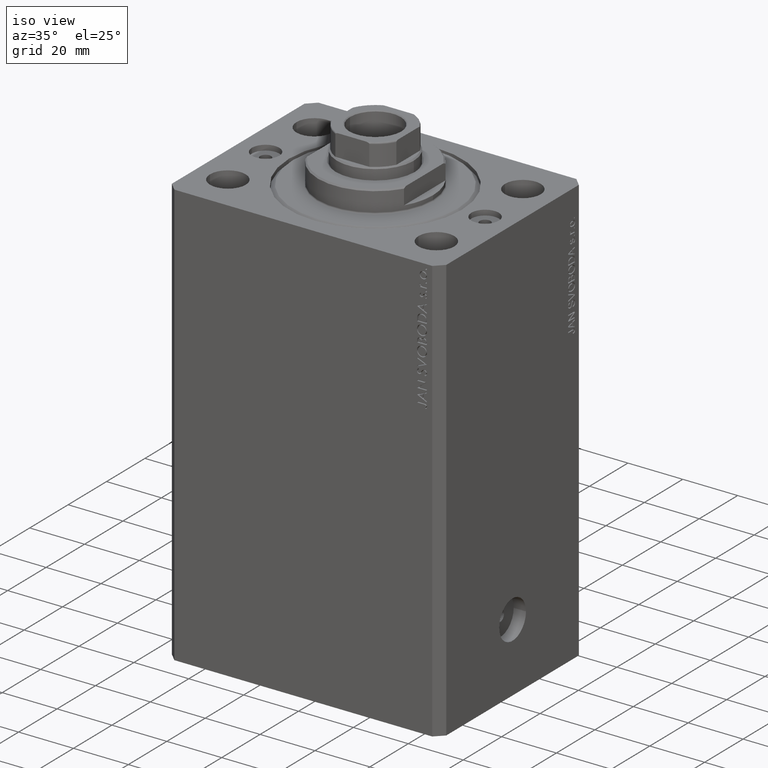
[diagram: clean part render]
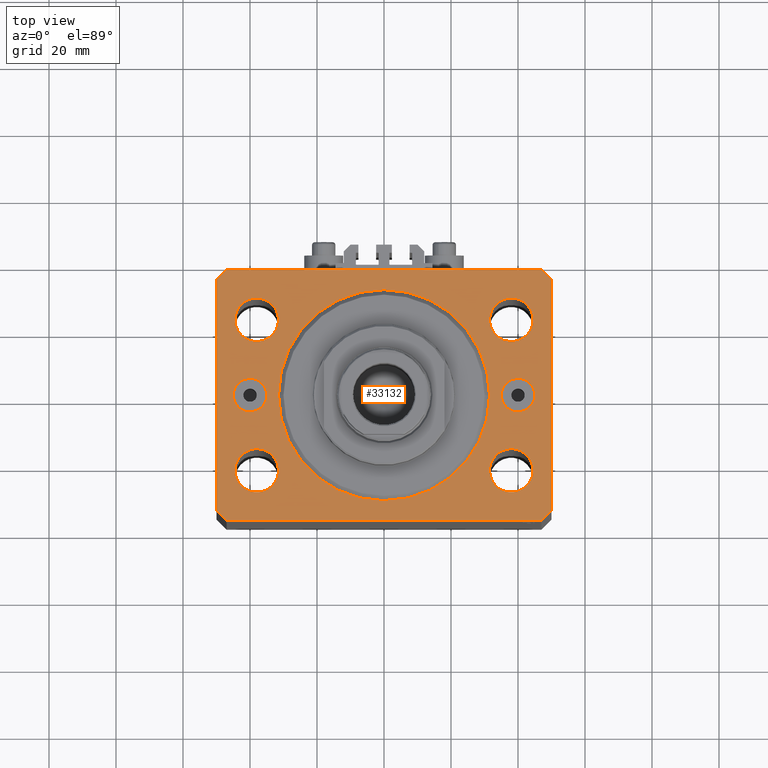
[diagram: tour spotlight — one face highlighted and labeled with its STEP entity id]
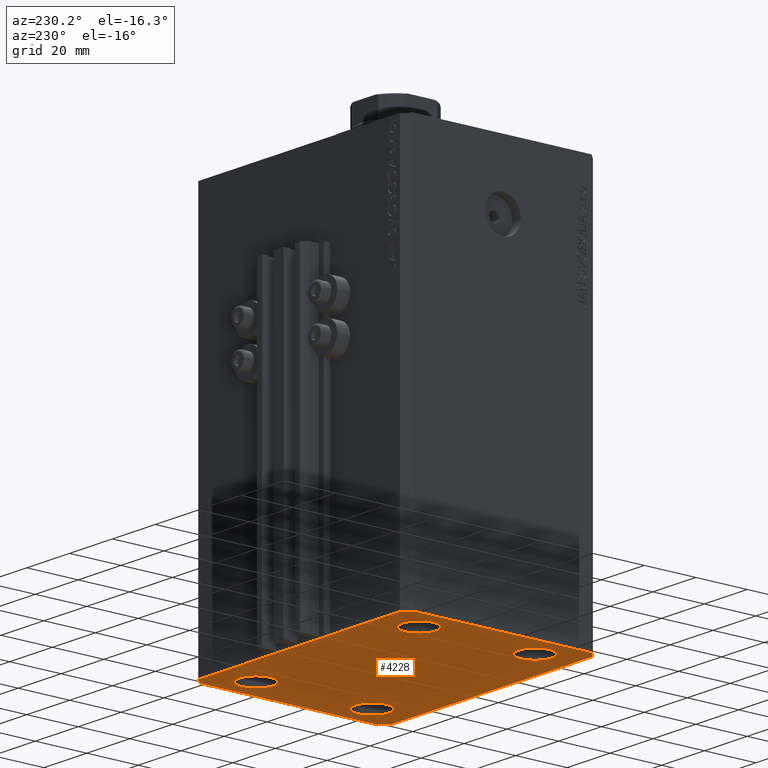
[diagram: tour spotlight — one face highlighted and labeled with its STEP entity id]
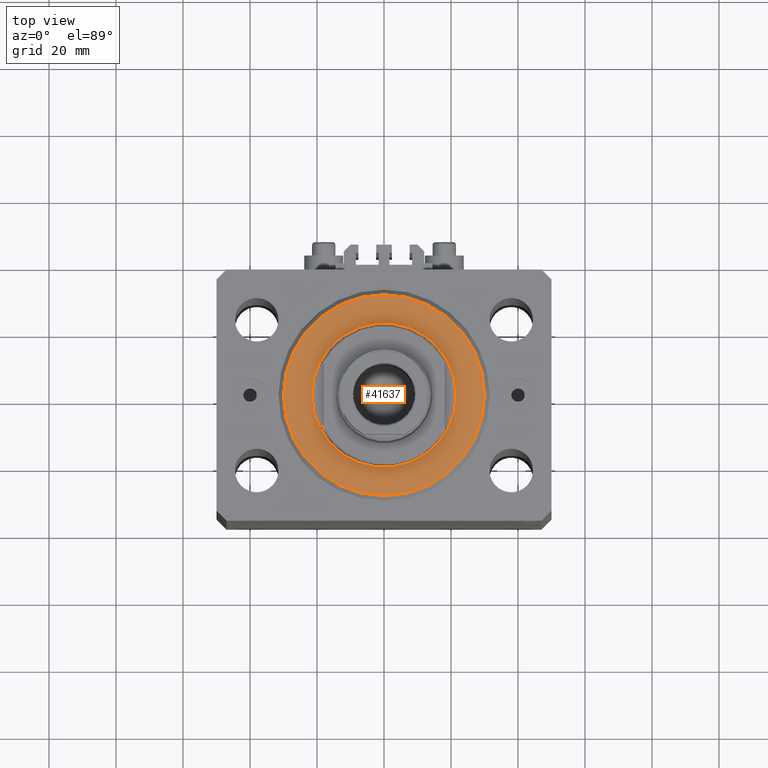
[diagram: tour spotlight — one face highlighted and labeled with its STEP entity id]
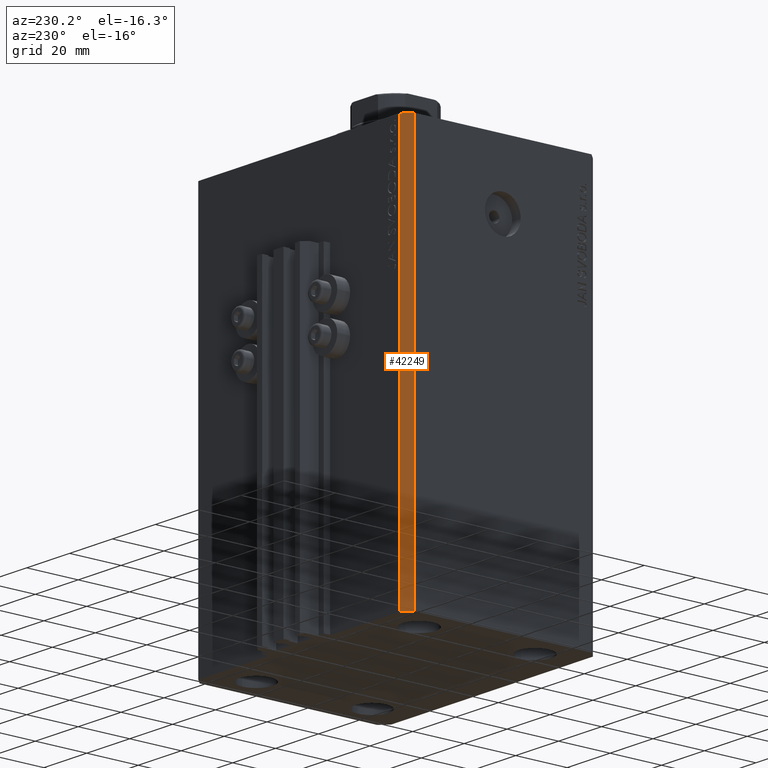
[diagram: tour spotlight — one face highlighted and labeled with its STEP entity id]
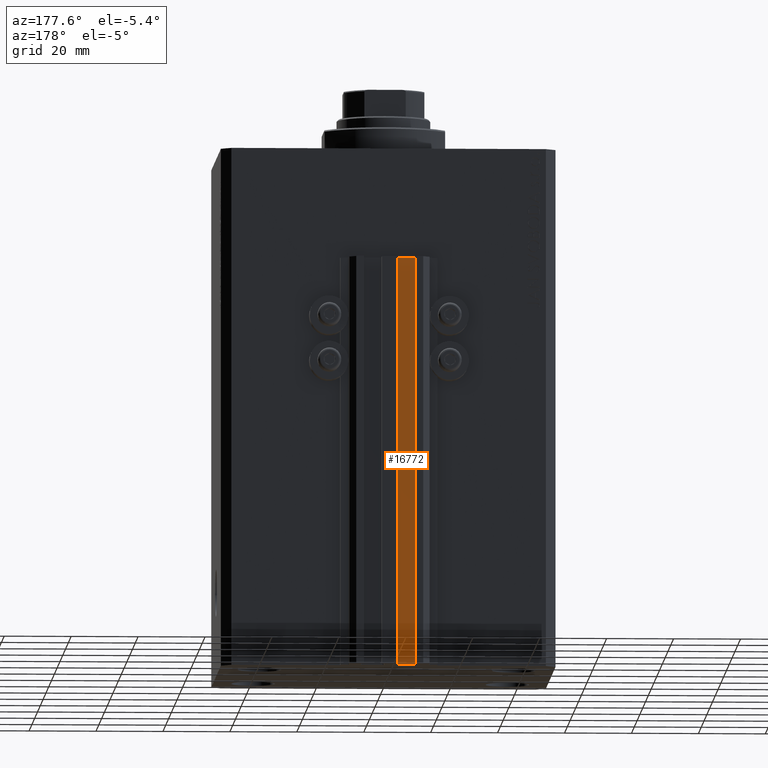
[diagram: tour spotlight — one face highlighted and labeled with its STEP entity id]
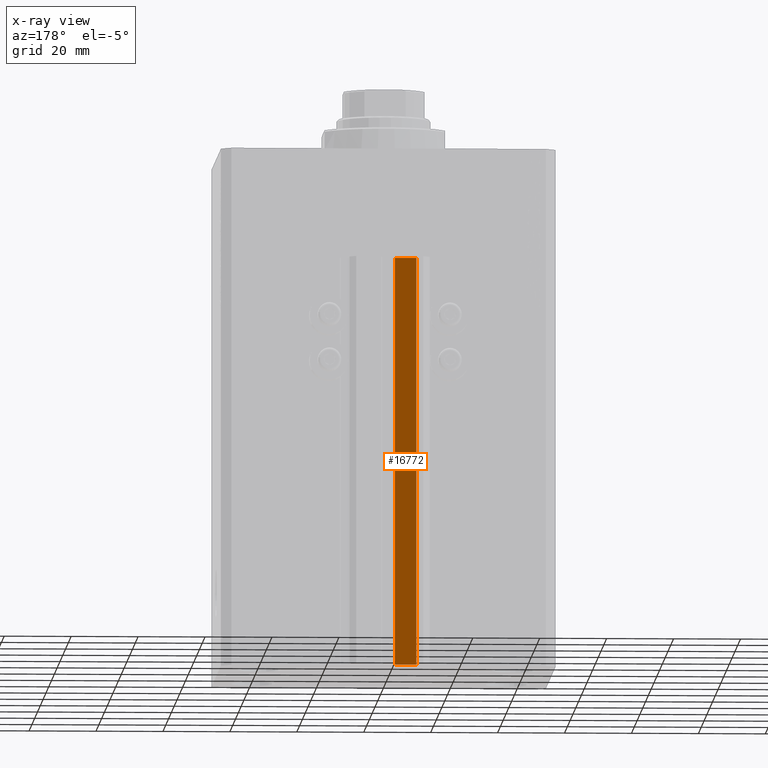
[diagram: x-ray of the same camera — body ghosted, this tour face saturated]
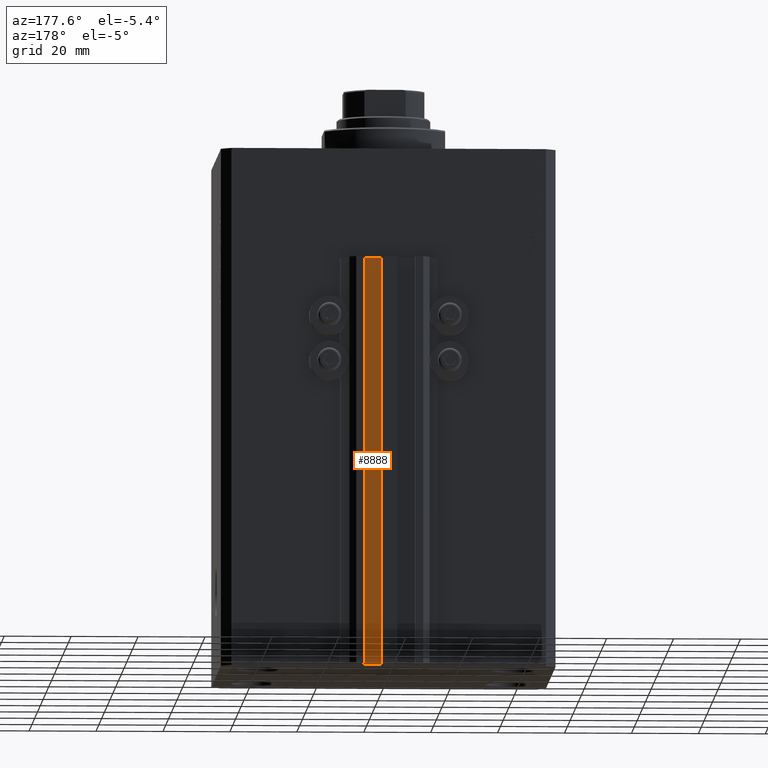
[diagram: tour spotlight — one face highlighted and labeled with its STEP entity id]
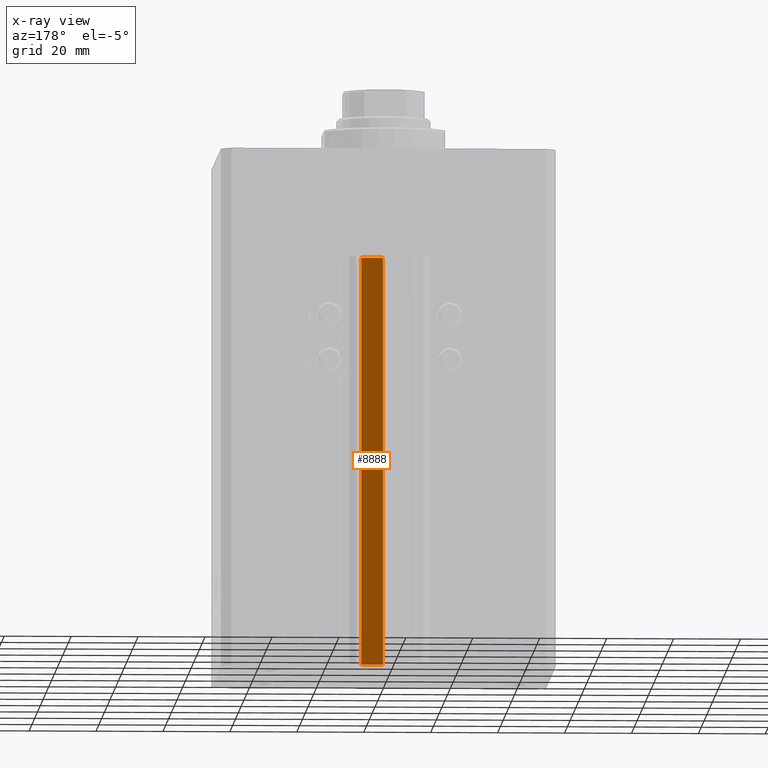
[diagram: x-ray of the same camera — body ghosted, this tour face saturated]
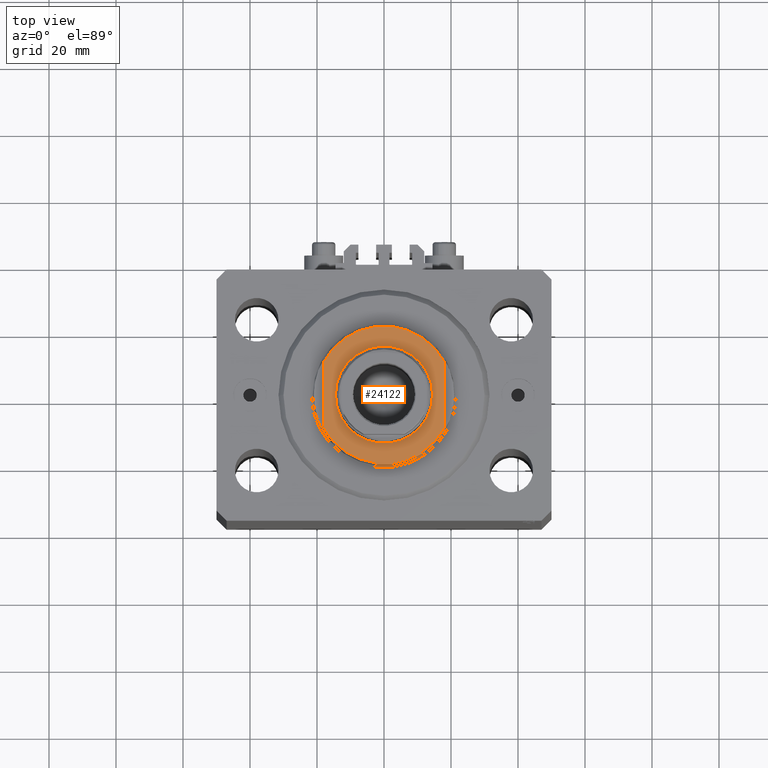
[diagram: tour spotlight — one face highlighted and labeled with its STEP entity id]
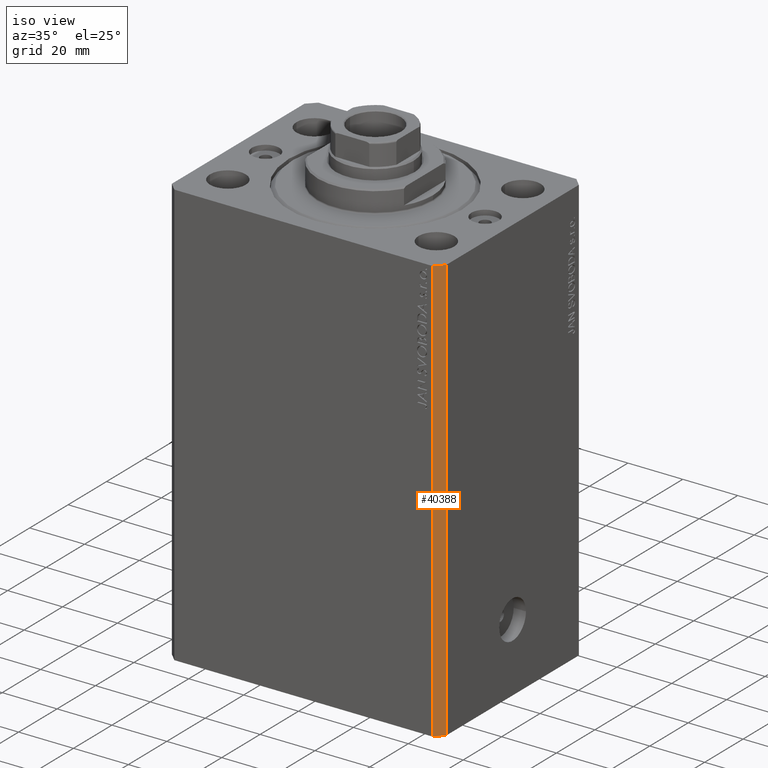
[diagram: tour spotlight — one face highlighted and labeled with its STEP entity id]
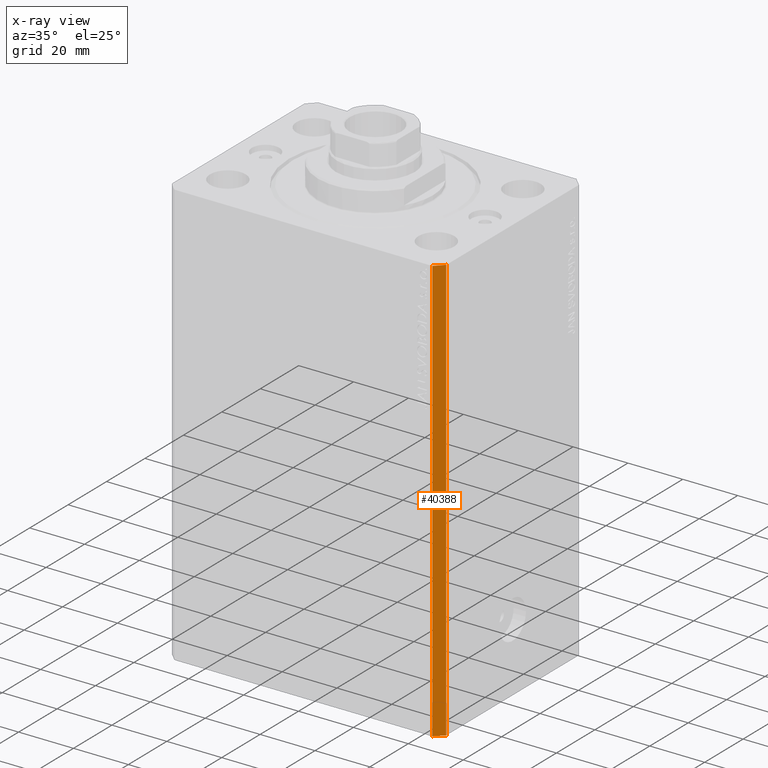
[diagram: x-ray of the same camera — body ghosted, this tour face saturated]
A machine part: a face-by-face anatomy tour. The part has 1034 B-rep faces; the first image is the clean iso view, then the 8 largest visible faces are spotlighted one at a time (largest first), each with its STEP entity span.

Face 1 — top view, entity #33132. In plain terms, the highlighted planar face has unit normal (0, 0, 1).
Definition (entity closure, byte-faithful):
#465 = EDGE_LOOP ( 'NONE', ( #27118, #31580 ) ) ;
#1098 = DIRECTION ( 'NONE',  ( 2.011273595335428326E-16, -1.000000000000000000, 0.000000000000000000 ) ) ;
#1218 = CARTESIAN_POINT ( 'NONE',  ( -38.00000000000000000, 22.49999999999999645, 0.000000000000000000 ) ) ;
#1382 = EDGE_CURVE ( 'NONE', #12415, #26561, #36174, .T. ) ;
#1724 = AXIS2_PLACEMENT_3D ( 'NONE', #46416, #13698, #28267 ) ;
#2495 = CIRCLE ( 'NONE', #5538, 4.999999999999997335 ) ;
#2730 = ORIENTED_EDGE ( 'NONE', *, *, #31121, .T. ) ;
#3324 = DIRECTION ( 'NONE',  ( -1.000000000000000000, 7.381802025433175941E-17, 0.000000000000000000 ) ) ;
#4007 = AXIS2_PLACEMENT_3D ( 'NONE', #10243, #45603, #38431 ) ;
#4032 = ORIENTED_EDGE ( 'NONE', *, *, #10638, .T. ) ;
#4093 = DIRECTION ( 'NONE',  ( 0.000000000000000000, 0.000000000000000000, 1.000000000000000000 ) ) ;
#4333 = FACE_BOUND ( 'NONE', #29044, .T. ) ;
#4527 = VERTEX_POINT ( 'NONE', #23037 ) ;
#4553 = CARTESIAN_POINT ( 'NONE',  ( 37.99999999999999289, -22.50000000000000000, 0.000000000000000000 ) ) ;
#4567 = DIRECTION ( 'NONE',  ( 1.000000000000000000, 0.000000000000000000, 0.000000000000000000 ) ) ;
#5538 = AXIS2_PLACEMENT_3D ( 'NONE', #18602, #7625, #11440 ) ;
#5729 = ORIENTED_EDGE ( 'NONE', *, *, #7137, .F. ) ;
#5821 = VECTOR ( 'NONE', #45915, 1000.000000000000000 ) ;
#5845 = CARTESIAN_POINT ( 'NONE',  ( 31.50000000000000000, 0.000000000000000000, 0.000000000000000000 ) ) ;
#6191 = EDGE_CURVE ( 'NONE', #38971, #20759, #15458, .T. ) ;
#6260 = ORIENTED_EDGE ( 'NONE', *, *, #9113, .F. ) ;
#6272 = AXIS2_PLACEMENT_3D ( 'NONE', #36906, #25228, #39794 ) ;
#6347 = EDGE_CURVE ( 'NONE', #20393, #26286, #32965, .T. ) ;
#6485 = EDGE_CURVE ( 'NONE', #14096, #41103, #10087, .T. ) ;
#6802 = CARTESIAN_POINT ( 'NONE',  ( 47.00000000000000000, -37.50000000000000711, 0.000000000000000000 ) ) ;
#6975 = CARTESIAN_POINT ( 'NONE',  ( 47.00000000000056843, 37.49999999999999289, 0.000000000000000000 ) ) ;
#7035 = AXIS2_PLACEMENT_3D ( 'NONE', #13415, #24176, #43017 ) ;
#7118 = LINE ( 'NONE', #13563, #34083 ) ;
#7137 = EDGE_CURVE ( 'NONE', #4527, #19464, #37566, .T. ) ;
#7278 = DIRECTION ( 'NONE',  ( 0.7071067811865483499, 0.7071067811865466846, 0.000000000000000000 ) ) ;
#7565 = VERTEX_POINT ( 'NONE', #45896 ) ;
#7625 = DIRECTION ( 'NONE',  ( 0.000000000000000000, -0.000000000000000000, -1.000000000000000000 ) ) ;
#7658 = PLANE ( 'NONE',  #24072 ) ;
#7828 = DIRECTION ( 'NONE',  ( 1.000000000000000000, 0.000000000000000000, 0.000000000000000000 ) ) ;
#8851 = EDGE_CURVE ( 'NONE', #40398, #12009, #36046, .T. ) ;
#9066 = DIRECTION ( 'NONE',  ( 0.000000000000000000, 0.000000000000000000, 1.000000000000000000 ) ) ;
#9113 = EDGE_CURVE ( 'NONE', #41765, #36366, #39067, .T. ) ;
#9508 = AXIS2_PLACEMENT_3D ( 'NONE', #10494, #14077, #46551 ) ;
#9622 = CARTESIAN_POINT ( 'NONE',  ( 50.00000000000000000, -34.50000000000000711, 0.000000000000000000 ) ) ;
#9661 = CARTESIAN_POINT ( 'NONE',  ( 31.49999999999999289, -22.50000000000000000, 0.000000000000000000 ) ) ;
#10087 = CIRCLE ( 'NONE', #4007, 6.499999999999999112 ) ;
#10243 = CARTESIAN_POINT ( 'NONE',  ( 38.00000000000000000, 22.49999999999998934, 0.000000000000000000 ) ) ;
#10292 = ORIENTED_EDGE ( 'NONE', *, *, #41865, .T. ) ;
#10494 = CARTESIAN_POINT ( 'NONE',  ( -40.00000000000000000, 0.000000000000000000, 0.000000000000000000 ) ) ;
#10541 = CARTESIAN_POINT ( 'NONE',  ( -31.49999999999999289, -22.50000000000000000, 0.000000000000000000 ) ) ;
#10634 = CARTESIAN_POINT ( 'NONE',  ( 44.50000000000000000, 22.49999999999998934, 0.000000000000000000 ) ) ;
#10638 = EDGE_CURVE ( 'NONE', #20759, #38971, #2495, .T. ) ;
#11099 = DIRECTION ( 'NONE',  ( -0.7071067811865361374, 0.7071067811865588970, 0.000000000000000000 ) ) ;
#11141 = ORIENTED_EDGE ( 'NONE', *, *, #39836, .T. ) ;
#11440 = DIRECTION ( 'NONE',  ( 1.000000000000000000, 0.000000000000000000, 0.000000000000000000 ) ) ;
#11585 = AXIS2_PLACEMENT_3D ( 'NONE', #24056, #38598, #42430 ) ;
#11651 = CARTESIAN_POINT ( 'NONE',  ( 0.000000000000000000, 0.000000000000000000, 0.000000000000000000 ) ) ;
#11668 = EDGE_LOOP ( 'NONE', ( #6260, #28625 ) ) ;
#11853 = ORIENTED_EDGE ( 'NONE', *, *, #6485, .F. ) ;
#11874 = LINE ( 'NONE', #39826, #44492 ) ;
#12009 = VERTEX_POINT ( 'NONE', #43930 ) ;
#12309 = EDGE_LOOP ( 'NONE', ( #33351, #46117 ) ) ;
#12374 = AXIS2_PLACEMENT_3D ( 'NONE', #33216, #4093, #18642 ) ;
#12415 = VERTEX_POINT ( 'NONE', #33358 ) ;
#13228 = EDGE_CURVE ( 'NONE', #19234, #45263, #11874, .T. ) ;
#13415 = CARTESIAN_POINT ( 'NONE',  ( 40.00000000000000000, 0.000000000000000000, 0.000000000000000000 ) ) ;
#13563 = CARTESIAN_POINT ( 'NONE',  ( -47.00000000000000000, -37.49999999999999289, 0.000000000000000000 ) ) ;
#13698 = DIRECTION ( 'NONE',  ( 0.000000000000000000, 0.000000000000000000, 1.000000000000000000 ) ) ;
#13727 = CARTESIAN_POINT ( 'NONE',  ( -31.50000000000000000, 22.49999999999999645, 0.000000000000000000 ) ) ;
#14077 = DIRECTION ( 'NONE',  ( 0.000000000000000000, 0.000000000000000000, 1.000000000000000000 ) ) ;
#14096 = VERTEX_POINT ( 'NONE', #36419 ) ;
#14207 = DIRECTION ( 'NONE',  ( 1.000000000000000000, 0.000000000000000000, 0.000000000000000000 ) ) ;
#15298 = DIRECTION ( 'NONE',  ( 1.000000000000000000, 0.000000000000000000, -0.000000000000000000 ) ) ;
#15458 = CIRCLE ( 'NONE', #7035, 4.999999999999997335 ) ;
#15538 = FACE_BOUND ( 'NONE', #18618, .T. ) ;
#15888 = CARTESIAN_POINT ( 'NONE',  ( 0.000000000000000000, 0.000000000000000000, 0.000000000000000000 ) ) ;
#16981 = EDGE_CURVE ( 'NONE', #41562, #42665, #43964, .T. ) ;
#17291 = AXIS2_PLACEMENT_3D ( 'NONE', #4553, #22216, #36536 ) ;
#17391 = CIRCLE ( 'NONE', #23512, 6.499999999999999112 ) ;
#17540 = CARTESIAN_POINT ( 'NONE',  ( 50.00000000000051870, 34.49999999999995026, 0.000000000000000000 ) ) ;
#17608 = DIRECTION ( 'NONE',  ( 1.000000000000000000, -1.476360405086644309E-16, 0.000000000000000000 ) ) ;
#17654 = CARTESIAN_POINT ( 'NONE',  ( -47.00000000000001421, 37.50000000000000000, 0.000000000000000000 ) ) ;
#17678 = CARTESIAN_POINT ( 'NONE',  ( -47.00000000000000000, -37.49999999999999289, 0.000000000000000000 ) ) ;
#17711 = CIRCLE ( 'NONE', #6272, 6.499999999999999112 ) ;
#18256 = CARTESIAN_POINT ( 'NONE',  ( 35.00000000000000000, 6.123233995736762338E-16, 0.000000000000000000 ) ) ;
#18509 = AXIS2_PLACEMENT_3D ( 'NONE', #15888, #34043, #23305 ) ;
#18568 = ORIENTED_EDGE ( 'NONE', *, *, #39056, .T. ) ;
#18602 = CARTESIAN_POINT ( 'NONE',  ( 40.00000000000000000, 0.000000000000000000, 0.000000000000000000 ) ) ;
#18618 = EDGE_LOOP ( 'NONE', ( #41866, #5729 ) ) ;
#18642 = DIRECTION ( 'NONE',  ( 1.000000000000000000, 0.000000000000000000, 0.000000000000000000 ) ) ;
#18877 = CARTESIAN_POINT ( 'NONE',  ( 0.000000000000000000, 0.000000000000000000, 0.000000000000000000 ) ) ;
#19143 = EDGE_CURVE ( 'NONE', #7565, #43969, #17391, .T. ) ;
#19234 = VERTEX_POINT ( 'NONE', #32142 ) ;
#19342 = FACE_OUTER_BOUND ( 'NONE', #40268, .T. ) ;
#19464 = VERTEX_POINT ( 'NONE', #5845 ) ;
#20209 = VECTOR ( 'NONE', #7278, 1000.000000000000000 ) ;
#20393 = VERTEX_POINT ( 'NONE', #10541 ) ;
#20515 = VERTEX_POINT ( 'NONE', #32742 ) ;
#20759 = VERTEX_POINT ( 'NONE', #39628 ) ;
#21073 = LINE ( 'NONE', #9622, #5821 ) ;
#21646 = CARTESIAN_POINT ( 'NONE',  ( -35.00000000000000000, 0.000000000000000000, 0.000000000000000000 ) ) ;
#21999 = FACE_BOUND ( 'NONE', #35972, .T. ) ;
#22216 = DIRECTION ( 'NONE',  ( 0.000000000000000000, 0.000000000000000000, 1.000000000000000000 ) ) ;
#22274 = EDGE_CURVE ( 'NONE', #26286, #20393, #30606, .T. ) ;
#22407 = LINE ( 'NONE', #33384, #29116 ) ;
#22902 = ORIENTED_EDGE ( 'NONE', *, *, #23030, .F. ) ;
#22978 = EDGE_CURVE ( 'NONE', #26561, #40398, #22407, .T. ) ;
#23030 = EDGE_CURVE ( 'NONE', #41103, #14096, #32169, .T. ) ;
#23037 = CARTESIAN_POINT ( 'NONE',  ( -31.50000000000000000, 3.857637417314162689E-15, 0.000000000000000000 ) ) ;
#23194 = ORIENTED_EDGE ( 'NONE', *, *, #6191, .T. ) ;
#23305 = DIRECTION ( 'NONE',  ( 1.000000000000000000, 0.000000000000000000, 0.000000000000000000 ) ) ;
#23473 = ORIENTED_EDGE ( 'NONE', *, *, #22978, .T. ) ;
#23512 = AXIS2_PLACEMENT_3D ( 'NONE', #1218, #9066, #4567 ) ;
#23900 = EDGE_CURVE ( 'NONE', #42665, #41562, #17711, .T. ) ;
#24056 = CARTESIAN_POINT ( 'NONE',  ( 38.00000000000000000, 22.49999999999998934, 0.000000000000000000 ) ) ;
#24072 = AXIS2_PLACEMENT_3D ( 'NONE', #18877, #30104, #15298 ) ;
#24176 = DIRECTION ( 'NONE',  ( 0.000000000000000000, -0.000000000000000000, -1.000000000000000000 ) ) ;
#24591 = EDGE_CURVE ( 'NONE', #43969, #7565, #26855, .T. ) ;
#24614 = CARTESIAN_POINT ( 'NONE',  ( -47.00000000000001421, 37.50000000000000000, 0.000000000000000000 ) ) ;
#25228 = DIRECTION ( 'NONE',  ( 0.000000000000000000, 0.000000000000000000, 1.000000000000000000 ) ) ;
#25571 = CIRCLE ( 'NONE', #29380, 31.50000000000000000 ) ;
#25586 = FACE_BOUND ( 'NONE', #465, .T. ) ;
#25816 = FACE_BOUND ( 'NONE', #41304, .T. ) ;
#25929 = LINE ( 'NONE', #33802, #31038 ) ;
#26138 = CARTESIAN_POINT ( 'NONE',  ( -37.99999999999999289, -22.50000000000000000, 0.000000000000000000 ) ) ;
#26286 = VERTEX_POINT ( 'NONE', #27813 ) ;
#26561 = VERTEX_POINT ( 'NONE', #6975 ) ;
#26855 = CIRCLE ( 'NONE', #32203, 6.499999999999999112 ) ;
#27118 = ORIENTED_EDGE ( 'NONE', *, *, #24591, .F. ) ;
#27626 = CARTESIAN_POINT ( 'NONE',  ( 44.49999999999999289, -22.50000000000000000, 0.000000000000000000 ) ) ;
#27813 = CARTESIAN_POINT ( 'NONE',  ( -44.49999999999999289, -22.50000000000000000, 0.000000000000000000 ) ) ;
#28267 = DIRECTION ( 'NONE',  ( 1.000000000000000000, 0.000000000000000000, 0.000000000000000000 ) ) ;
#28316 = AXIS2_PLACEMENT_3D ( 'NONE', #26138, #43811, #14207 ) ;
#28625 = ORIENTED_EDGE ( 'NONE', *, *, #30744, .F. ) ;
#29044 = EDGE_LOOP ( 'NONE', ( #22902, #11853 ) ) ;
#29116 = VECTOR ( 'NONE', #3324, 1000.000000000000000 ) ;
#29380 = AXIS2_PLACEMENT_3D ( 'NONE', #11651, #41021, #7828 ) ;
#30100 = CIRCLE ( 'NONE', #9508, 4.999999999999997335 ) ;
#30104 = DIRECTION ( 'NONE',  ( 0.000000000000000000, 0.000000000000000000, 1.000000000000000000 ) ) ;
#30552 = VECTOR ( 'NONE', #11099, 1000.000000000000114 ) ;
#30606 = CIRCLE ( 'NONE', #28316, 6.499999999999999112 ) ;
#30744 = EDGE_CURVE ( 'NONE', #36366, #41765, #30100, .T. ) ;
#31038 = VECTOR ( 'NONE', #1098, 1000.000000000000000 ) ;
#31121 = EDGE_CURVE ( 'NONE', #31688, #20515, #35456, .T. ) ;
#31580 = ORIENTED_EDGE ( 'NONE', *, *, #19143, .F. ) ;
#31688 = VERTEX_POINT ( 'NONE', #36229 ) ;
#31976 = ORIENTED_EDGE ( 'NONE', *, *, #6347, .F. ) ;
#32142 = CARTESIAN_POINT ( 'NONE',  ( -50.00000000000000000, -34.50000000000000000, 0.000000000000000000 ) ) ;
#32169 = CIRCLE ( 'NONE', #11585, 6.499999999999999112 ) ;
#32203 = AXIS2_PLACEMENT_3D ( 'NONE', #45613, #34866, #34636 ) ;
#32742 = CARTESIAN_POINT ( 'NONE',  ( 50.00000000000000000, -34.50000000000000711, 0.000000000000000000 ) ) ;
#32965 = CIRCLE ( 'NONE', #12374, 6.499999999999999112 ) ;
#33132 = ADVANCED_FACE ( 'NONE', ( #19342, #25586, #4333, #33684, #21999, #15538, #43963, #25816 ), #7658, .T. ) ;
#33216 = CARTESIAN_POINT ( 'NONE',  ( -37.99999999999999289, -22.50000000000000000, 0.000000000000000000 ) ) ;
#33351 = ORIENTED_EDGE ( 'NONE', *, *, #16981, .F. ) ;
#33358 = CARTESIAN_POINT ( 'NONE',  ( 50.00000000000051870, 34.49999999999995026, 0.000000000000000000 ) ) ;
#33384 = CARTESIAN_POINT ( 'NONE',  ( 47.00000000000056843, 37.49999999999999289, 0.000000000000000000 ) ) ;
#33684 = FACE_BOUND ( 'NONE', #12309, .T. ) ;
#33802 = CARTESIAN_POINT ( 'NONE',  ( -50.00000000000001421, 34.50000000000000000, 0.000000000000000000 ) ) ;
#34043 = DIRECTION ( 'NONE',  ( 0.000000000000000000, 0.000000000000000000, 1.000000000000000000 ) ) ;
#34083 = VECTOR ( 'NONE', #17608, 1000.000000000000000 ) ;
#34167 = ORIENTED_EDGE ( 'NONE', *, *, #13228, .T. ) ;
#34636 = DIRECTION ( 'NONE',  ( 1.000000000000000000, 0.000000000000000000, 0.000000000000000000 ) ) ;
#34866 = DIRECTION ( 'NONE',  ( 0.000000000000000000, 0.000000000000000000, 1.000000000000000000 ) ) ;
#35343 = DIRECTION ( 'NONE',  ( -0.7071067811865483499, -0.7071067811865466846, 0.000000000000000000 ) ) ;
#35456 = LINE ( 'NONE', #6802, #20209 ) ;
#35972 = EDGE_LOOP ( 'NONE', ( #31976, #39337 ) ) ;
#36046 = LINE ( 'NONE', #17654, #44390 ) ;
#36174 = LINE ( 'NONE', #17540, #30552 ) ;
#36229 = CARTESIAN_POINT ( 'NONE',  ( 47.00000000000000000, -37.50000000000000711, 0.000000000000000000 ) ) ;
#36238 = DIRECTION ( 'NONE',  ( 0.7071067811865491270, -0.7071067811865459074, 0.000000000000000000 ) ) ;
#36366 = VERTEX_POINT ( 'NONE', #46883 ) ;
#36419 = CARTESIAN_POINT ( 'NONE',  ( 31.50000000000000000, 22.49999999999998934, 0.000000000000000000 ) ) ;
#36536 = DIRECTION ( 'NONE',  ( 1.000000000000000000, 0.000000000000000000, 0.000000000000000000 ) ) ;
#36764 = EDGE_CURVE ( 'NONE', #19464, #4527, #25571, .T. ) ;
#36906 = CARTESIAN_POINT ( 'NONE',  ( 37.99999999999999289, -22.50000000000000000, 0.000000000000000000 ) ) ;
#37566 = CIRCLE ( 'NONE', #18509, 31.50000000000000000 ) ;
#38431 = DIRECTION ( 'NONE',  ( 1.000000000000000000, 0.000000000000000000, 0.000000000000000000 ) ) ;
#38598 = DIRECTION ( 'NONE',  ( 0.000000000000000000, 0.000000000000000000, 1.000000000000000000 ) ) ;
#38971 = VERTEX_POINT ( 'NONE', #18256 ) ;
#39056 = EDGE_CURVE ( 'NONE', #20515, #12415, #21073, .T. ) ;
#39067 = CIRCLE ( 'NONE', #1724, 4.999999999999997335 ) ;
#39337 = ORIENTED_EDGE ( 'NONE', *, *, #22274, .F. ) ;
#39628 = CARTESIAN_POINT ( 'NONE',  ( 45.00000000000000000, 0.000000000000000000, 0.000000000000000000 ) ) ;
#39794 = DIRECTION ( 'NONE',  ( 1.000000000000000000, 0.000000000000000000, 0.000000000000000000 ) ) ;
#39826 = CARTESIAN_POINT ( 'NONE',  ( -50.00000000000000000, -34.50000000000000000, 0.000000000000000000 ) ) ;
#39836 = EDGE_CURVE ( 'NONE', #45263, #31688, #7118, .T. ) ;
#40268 = EDGE_LOOP ( 'NONE', ( #23473, #43557, #10292, #34167, #11141, #2730, #18568, #44671 ) ) ;
#40398 = VERTEX_POINT ( 'NONE', #24614 ) ;
#41021 = DIRECTION ( 'NONE',  ( 0.000000000000000000, 0.000000000000000000, 1.000000000000000000 ) ) ;
#41103 = VERTEX_POINT ( 'NONE', #10634 ) ;
#41304 = EDGE_LOOP ( 'NONE', ( #4032, #23194 ) ) ;
#41562 = VERTEX_POINT ( 'NONE', #27626 ) ;
#41765 = VERTEX_POINT ( 'NONE', #21646 ) ;
#41865 = EDGE_CURVE ( 'NONE', #12009, #19234, #25929, .T. ) ;
#41866 = ORIENTED_EDGE ( 'NONE', *, *, #36764, .F. ) ;
#42430 = DIRECTION ( 'NONE',  ( 1.000000000000000000, 0.000000000000000000, 0.000000000000000000 ) ) ;
#42665 = VERTEX_POINT ( 'NONE', #9661 ) ;
#43017 = DIRECTION ( 'NONE',  ( 1.000000000000000000, 0.000000000000000000, 0.000000000000000000 ) ) ;
#43557 = ORIENTED_EDGE ( 'NONE', *, *, #8851, .T. ) ;
#43811 = DIRECTION ( 'NONE',  ( 0.000000000000000000, 0.000000000000000000, 1.000000000000000000 ) ) ;
#43930 = CARTESIAN_POINT ( 'NONE',  ( -50.00000000000001421, 34.50000000000000000, 0.000000000000000000 ) ) ;
#43963 = FACE_BOUND ( 'NONE', #11668, .T. ) ;
#43964 = CIRCLE ( 'NONE', #17291, 6.499999999999999112 ) ;
#43969 = VERTEX_POINT ( 'NONE', #13727 ) ;
#44390 = VECTOR ( 'NONE', #35343, 1000.000000000000000 ) ;
#44492 = VECTOR ( 'NONE', #36238, 1000.000000000000114 ) ;
#44671 = ORIENTED_EDGE ( 'NONE', *, *, #1382, .T. ) ;
#45263 = VERTEX_POINT ( 'NONE', #17678 ) ;
#45603 = DIRECTION ( 'NONE',  ( 0.000000000000000000, 0.000000000000000000, 1.000000000000000000 ) ) ;
#45613 = CARTESIAN_POINT ( 'NONE',  ( -38.00000000000000000, 22.49999999999999645, 0.000000000000000000 ) ) ;
#45896 = CARTESIAN_POINT ( 'NONE',  ( -44.50000000000000000, 22.49999999999999645, 0.000000000000000000 ) ) ;
#45915 = DIRECTION ( 'NONE',  ( 7.441712302741091634E-15, 1.000000000000000000, 0.000000000000000000 ) ) ;
#46117 = ORIENTED_EDGE ( 'NONE', *, *, #23900, .F. ) ;
#46416 = CARTESIAN_POINT ( 'NONE',  ( -40.00000000000000000, 0.000000000000000000, 0.000000000000000000 ) ) ;
#46551 = DIRECTION ( 'NONE',  ( 1.000000000000000000, 0.000000000000000000, 0.000000000000000000 ) ) ;
#46883 = CARTESIAN_POINT ( 'NONE',  ( -45.00000000000000000, 6.123233995736762338E-16, 0.000000000000000000 ) ) ;

Face 2 — auxiliary view, entity #4228. In plain terms, the highlighted planar face has unit normal (0, 0, 1).
Definition (entity closure, byte-faithful):
#4 = ORIENTED_EDGE ( 'NONE', *, *, #39060, .F. ) ;
#648 = DIRECTION ( 'NONE',  ( 1.000000000000000000, 0.000000000000000000, 0.000000000000000000 ) ) ;
#952 = CARTESIAN_POINT ( 'NONE',  ( -47.00000000000000000, -37.49999999999999289, -155.0000000000000000 ) ) ;
#2291 = CARTESIAN_POINT ( 'NONE',  ( 47.00000000000000000, -37.50000000000000711, -155.0000000000000000 ) ) ;
#2403 = CARTESIAN_POINT ( 'NONE',  ( -31.49999999999999289, -22.50000000000000000, -155.0000000000000000 ) ) ;
#2533 = LINE ( 'NONE', #17085, #36551 ) ;
#2535 = CARTESIAN_POINT ( 'NONE',  ( 44.50000000000000000, 22.49999999999998934, -155.0000000000000000 ) ) ;
#3605 = FACE_BOUND ( 'NONE', #14845, .T. ) ;
#3974 = DIRECTION ( 'NONE',  ( 1.000000000000000000, 0.000000000000000000, 0.000000000000000000 ) ) ;
#4042 = ORIENTED_EDGE ( 'NONE', *, *, #10301, .F. ) ;
#4113 = VERTEX_POINT ( 'NONE', #20559 ) ;
#4114 = VERTEX_POINT ( 'NONE', #42752 ) ;
#4228 = ADVANCED_FACE ( 'NONE', ( #3605, #44411, #18858, #40839, #4550 ), #18154, .F. ) ;
#4550 = FACE_OUTER_BOUND ( 'NONE', #37853, .T. ) ;
#4854 = DIRECTION ( 'NONE',  ( -0.000000000000000000, -0.000000000000000000, -1.000000000000000000 ) ) ;
#5262 = VERTEX_POINT ( 'NONE', #31960 ) ;
#5315 = LINE ( 'NONE', #37311, #27222 ) ;
#5679 = EDGE_CURVE ( 'NONE', #29315, #6001, #42882, .T. ) ;
#6001 = VERTEX_POINT ( 'NONE', #15509 ) ;
#6733 = CARTESIAN_POINT ( 'NONE',  ( 50.00000000000000000, -34.50000000000000711, -155.0000000000000000 ) ) ;
#7011 = EDGE_CURVE ( 'NONE', #11662, #12027, #26164, .T. ) ;
#7157 = EDGE_LOOP ( 'NONE', ( #28995, #46261 ) ) ;
#8130 = EDGE_CURVE ( 'NONE', #5262, #13821, #17795, .T. ) ;
#8637 = AXIS2_PLACEMENT_3D ( 'NONE', #36622, #10374, #25180 ) ;
#8683 = ORIENTED_EDGE ( 'NONE', *, *, #27342, .F. ) ;
#8716 = VERTEX_POINT ( 'NONE', #2403 ) ;
#8729 = CARTESIAN_POINT ( 'NONE',  ( -38.00000000000000000, 22.49999999999999645, -155.0000000000000000 ) ) ;
#9350 = CARTESIAN_POINT ( 'NONE',  ( -47.00000000000001421, 37.50000000000000000, -155.0000000000000000 ) ) ;
#9383 = EDGE_CURVE ( 'NONE', #40742, #4114, #38727, .T. ) ;
#9619 = DIRECTION ( 'NONE',  ( -0.000000000000000000, -0.000000000000000000, -1.000000000000000000 ) ) ;
#10188 = CARTESIAN_POINT ( 'NONE',  ( 37.99999999999999289, -22.50000000000000000, -155.0000000000000000 ) ) ;
#10261 = CIRCLE ( 'NONE', #40784, 6.499999999999999112 ) ;
#10301 = EDGE_CURVE ( 'NONE', #8716, #40221, #32214, .T. ) ;
#10374 = DIRECTION ( 'NONE',  ( -0.000000000000000000, -0.000000000000000000, -1.000000000000000000 ) ) ;
#10727 = CARTESIAN_POINT ( 'NONE',  ( -50.00000000000001421, 34.50000000000000000, -155.0000000000000000 ) ) ;
#11662 = VERTEX_POINT ( 'NONE', #31001 ) ;
#11925 = VECTOR ( 'NONE', #46151, 1000.000000000000000 ) ;
#12027 = VERTEX_POINT ( 'NONE', #40114 ) ;
#12191 = CARTESIAN_POINT ( 'NONE',  ( -47.00000000000001421, 37.50000000000000000, -155.0000000000000000 ) ) ;
#12284 = ORIENTED_EDGE ( 'NONE', *, *, #46838, .F. ) ;
#12295 = DIRECTION ( 'NONE',  ( 1.000000000000000000, 0.000000000000000000, 0.000000000000000000 ) ) ;
#12311 = DIRECTION ( 'NONE',  ( -0.000000000000000000, -0.000000000000000000, -1.000000000000000000 ) ) ;
#12407 = AXIS2_PLACEMENT_3D ( 'NONE', #10188, #25231, #3974 ) ;
#12731 = CARTESIAN_POINT ( 'NONE',  ( -37.99999999999999289, -22.50000000000000000, -155.0000000000000000 ) ) ;
#13130 = LINE ( 'NONE', #12191, #33614 ) ;
#13821 = VERTEX_POINT ( 'NONE', #19269 ) ;
#14600 = AXIS2_PLACEMENT_3D ( 'NONE', #43713, #22454, #40129 ) ;
#14810 = EDGE_CURVE ( 'NONE', #12027, #11662, #20931, .T. ) ;
#14835 = AXIS2_PLACEMENT_3D ( 'NONE', #23049, #22821, #15877 ) ;
#14845 = EDGE_LOOP ( 'NONE', ( #4042, #8683 ) ) ;
#15083 = CARTESIAN_POINT ( 'NONE',  ( 47.00000000000000000, -37.50000000000000711, -155.0000000000000000 ) ) ;
#15318 = DIRECTION ( 'NONE',  ( 0.7071067811865483499, 0.7071067811865466846, 0.000000000000000000 ) ) ;
#15509 = CARTESIAN_POINT ( 'NONE',  ( 31.50000000000000000, 22.49999999999998934, -155.0000000000000000 ) ) ;
#15590 = CARTESIAN_POINT ( 'NONE',  ( 38.00000000000000000, 22.49999999999998934, -155.0000000000000000 ) ) ;
#15805 = EDGE_CURVE ( 'NONE', #13821, #5262, #10261, .T. ) ;
#15877 = DIRECTION ( 'NONE',  ( 1.000000000000000000, 0.000000000000000000, 0.000000000000000000 ) ) ;
#16102 = CARTESIAN_POINT ( 'NONE',  ( -50.00000000000000000, -34.50000000000000000, -155.0000000000000000 ) ) ;
#16785 = LINE ( 'NONE', #31587, #11925 ) ;
#16997 = AXIS2_PLACEMENT_3D ( 'NONE', #29530, #12311, #648 ) ;
#17085 = CARTESIAN_POINT ( 'NONE',  ( -50.00000000000000000, -34.50000000000000000, -155.0000000000000000 ) ) ;
#17795 = CIRCLE ( 'NONE', #8637, 6.499999999999999112 ) ;
#17948 = DIRECTION ( 'NONE',  ( 1.000000000000000000, 0.000000000000000000, 0.000000000000000000 ) ) ;
#18064 = ORIENTED_EDGE ( 'NONE', *, *, #41273, .F. ) ;
#18154 = PLANE ( 'NONE',  #14600 ) ;
#18419 = LINE ( 'NONE', #15083, #43559 ) ;
#18570 = CIRCLE ( 'NONE', #38405, 6.499999999999999112 ) ;
#18858 = FACE_BOUND ( 'NONE', #7157, .T. ) ;
#19269 = CARTESIAN_POINT ( 'NONE',  ( -44.50000000000000000, 22.49999999999999645, -155.0000000000000000 ) ) ;
#20075 = CIRCLE ( 'NONE', #16997, 6.499999999999999112 ) ;
#20559 = CARTESIAN_POINT ( 'NONE',  ( 47.00000000000056843, 37.49999999999999289, -155.0000000000000000 ) ) ;
#20604 = EDGE_CURVE ( 'NONE', #36675, #45726, #13130, .T. ) ;
#20931 = CIRCLE ( 'NONE', #14835, 6.499999999999999112 ) ;
#21297 = ORIENTED_EDGE ( 'NONE', *, *, #15805, .F. ) ;
#21409 = ORIENTED_EDGE ( 'NONE', *, *, #21474, .F. ) ;
#21474 = EDGE_CURVE ( 'NONE', #35163, #40742, #18419, .T. ) ;
#21579 = EDGE_LOOP ( 'NONE', ( #36181, #35244 ) ) ;
#21703 = EDGE_CURVE ( 'NONE', #45726, #46068, #31524, .T. ) ;
#22454 = DIRECTION ( 'NONE',  ( 0.000000000000000000, 0.000000000000000000, 1.000000000000000000 ) ) ;
#22760 = DIRECTION ( 'NONE',  ( 1.000000000000000000, 0.000000000000000000, 0.000000000000000000 ) ) ;
#22821 = DIRECTION ( 'NONE',  ( -0.000000000000000000, -0.000000000000000000, -1.000000000000000000 ) ) ;
#23049 = CARTESIAN_POINT ( 'NONE',  ( 37.99999999999999289, -22.50000000000000000, -155.0000000000000000 ) ) ;
#24265 = CARTESIAN_POINT ( 'NONE',  ( -44.49999999999999289, -22.50000000000000000, -155.0000000000000000 ) ) ;
#24850 = ORIENTED_EDGE ( 'NONE', *, *, #9383, .F. ) ;
#25180 = DIRECTION ( 'NONE',  ( 1.000000000000000000, 0.000000000000000000, 0.000000000000000000 ) ) ;
#25231 = DIRECTION ( 'NONE',  ( -0.000000000000000000, -0.000000000000000000, -1.000000000000000000 ) ) ;
#25259 = VECTOR ( 'NONE', #39154, 1000.000000000000000 ) ;
#26164 = CIRCLE ( 'NONE', #12407, 6.499999999999999112 ) ;
#26966 = EDGE_CURVE ( 'NONE', #6001, #29315, #20075, .T. ) ;
#27040 = DIRECTION ( 'NONE',  ( -0.7071067811865361374, 0.7071067811865588970, 0.000000000000000000 ) ) ;
#27181 = ORIENTED_EDGE ( 'NONE', *, *, #8130, .F. ) ;
#27222 = VECTOR ( 'NONE', #27040, 1000.000000000000114 ) ;
#27342 = EDGE_CURVE ( 'NONE', #40221, #8716, #18570, .T. ) ;
#27653 = AXIS2_PLACEMENT_3D ( 'NONE', #36330, #37038, #17948 ) ;
#28995 = ORIENTED_EDGE ( 'NONE', *, *, #5679, .F. ) ;
#29181 = ORIENTED_EDGE ( 'NONE', *, *, #36820, .F. ) ;
#29315 = VERTEX_POINT ( 'NONE', #2535 ) ;
#29329 = LINE ( 'NONE', #29562, #30902 ) ;
#29530 = CARTESIAN_POINT ( 'NONE',  ( 38.00000000000000000, 22.49999999999998934, -155.0000000000000000 ) ) ;
#29562 = CARTESIAN_POINT ( 'NONE',  ( 47.00000000000056843, 37.49999999999999289, -155.0000000000000000 ) ) ;
#29903 = VECTOR ( 'NONE', #35383, 1000.000000000000000 ) ;
#30725 = CARTESIAN_POINT ( 'NONE',  ( -50.00000000000001421, 34.50000000000000000, -155.0000000000000000 ) ) ;
#30902 = VECTOR ( 'NONE', #44834, 1000.000000000000000 ) ;
#31001 = CARTESIAN_POINT ( 'NONE',  ( 31.49999999999999289, -22.50000000000000000, -155.0000000000000000 ) ) ;
#31524 = LINE ( 'NONE', #10727, #25259 ) ;
#31587 = CARTESIAN_POINT ( 'NONE',  ( -47.00000000000000000, -37.49999999999999289, -155.0000000000000000 ) ) ;
#31655 = DIRECTION ( 'NONE',  ( 0.7071067811865491270, -0.7071067811865459074, 0.000000000000000000 ) ) ;
#31960 = CARTESIAN_POINT ( 'NONE',  ( -31.50000000000000000, 22.49999999999999645, -155.0000000000000000 ) ) ;
#32214 = CIRCLE ( 'NONE', #27653, 6.499999999999999112 ) ;
#33387 = ORIENTED_EDGE ( 'NONE', *, *, #20604, .F. ) ;
#33614 = VECTOR ( 'NONE', #41329, 1000.000000000000000 ) ;
#33898 = ORIENTED_EDGE ( 'NONE', *, *, #21703, .F. ) ;
#35163 = VERTEX_POINT ( 'NONE', #2291 ) ;
#35244 = ORIENTED_EDGE ( 'NONE', *, *, #7011, .F. ) ;
#35383 = DIRECTION ( 'NONE',  ( 7.441712302741091634E-15, 1.000000000000000000, 0.000000000000000000 ) ) ;
#36181 = ORIENTED_EDGE ( 'NONE', *, *, #14810, .F. ) ;
#36330 = CARTESIAN_POINT ( 'NONE',  ( -37.99999999999999289, -22.50000000000000000, -155.0000000000000000 ) ) ;
#36551 = VECTOR ( 'NONE', #31655, 1000.000000000000114 ) ;
#36622 = CARTESIAN_POINT ( 'NONE',  ( -38.00000000000000000, 22.49999999999999645, -155.0000000000000000 ) ) ;
#36675 = VERTEX_POINT ( 'NONE', #9350 ) ;
#36820 = EDGE_CURVE ( 'NONE', #4113, #36675, #29329, .T. ) ;
#37038 = DIRECTION ( 'NONE',  ( -0.000000000000000000, -0.000000000000000000, -1.000000000000000000 ) ) ;
#37311 = CARTESIAN_POINT ( 'NONE',  ( 50.00000000000051870, 34.49999999999995026, -155.0000000000000000 ) ) ;
#37853 = EDGE_LOOP ( 'NONE', ( #29181, #18064, #24850, #21409, #4, #12284, #33898, #33387 ) ) ;
#38085 = DIRECTION ( 'NONE',  ( -0.000000000000000000, -0.000000000000000000, -1.000000000000000000 ) ) ;
#38405 = AXIS2_PLACEMENT_3D ( 'NONE', #12731, #9619, #41869 ) ;
#38727 = LINE ( 'NONE', #6733, #29903 ) ;
#39060 = EDGE_CURVE ( 'NONE', #43898, #35163, #16785, .T. ) ;
#39154 = DIRECTION ( 'NONE',  ( 2.011273595335428326E-16, -1.000000000000000000, 0.000000000000000000 ) ) ;
#40114 = CARTESIAN_POINT ( 'NONE',  ( 44.49999999999999289, -22.50000000000000000, -155.0000000000000000 ) ) ;
#40129 = DIRECTION ( 'NONE',  ( 1.000000000000000000, 0.000000000000000000, -0.000000000000000000 ) ) ;
#40221 = VERTEX_POINT ( 'NONE', #24265 ) ;
#40610 = AXIS2_PLACEMENT_3D ( 'NONE', #15590, #4854, #22760 ) ;
#40742 = VERTEX_POINT ( 'NONE', #45585 ) ;
#40784 = AXIS2_PLACEMENT_3D ( 'NONE', #8729, #38085, #12295 ) ;
#40839 = FACE_BOUND ( 'NONE', #41692, .T. ) ;
#41273 = EDGE_CURVE ( 'NONE', #4114, #4113, #5315, .T. ) ;
#41329 = DIRECTION ( 'NONE',  ( -0.7071067811865483499, -0.7071067811865466846, 0.000000000000000000 ) ) ;
#41692 = EDGE_LOOP ( 'NONE', ( #27181, #21297 ) ) ;
#41869 = DIRECTION ( 'NONE',  ( 1.000000000000000000, 0.000000000000000000, 0.000000000000000000 ) ) ;
#42752 = CARTESIAN_POINT ( 'NONE',  ( 50.00000000000051870, 34.49999999999995026, -155.0000000000000000 ) ) ;
#42882 = CIRCLE ( 'NONE', #40610, 6.499999999999999112 ) ;
#43559 = VECTOR ( 'NONE', #15318, 1000.000000000000000 ) ;
#43713 = CARTESIAN_POINT ( 'NONE',  ( 0.000000000000000000, 0.000000000000000000, -155.0000000000000000 ) ) ;
#43898 = VERTEX_POINT ( 'NONE', #952 ) ;
#44411 = FACE_BOUND ( 'NONE', #21579, .T. ) ;
#44834 = DIRECTION ( 'NONE',  ( -1.000000000000000000, 7.381802025433175941E-17, 0.000000000000000000 ) ) ;
#45585 = CARTESIAN_POINT ( 'NONE',  ( 50.00000000000000000, -34.50000000000000711, -155.0000000000000000 ) ) ;
#45726 = VERTEX_POINT ( 'NONE', #30725 ) ;
#46068 = VERTEX_POINT ( 'NONE', #16102 ) ;
#46151 = DIRECTION ( 'NONE',  ( 1.000000000000000000, -1.476360405086644309E-16, 0.000000000000000000 ) ) ;
#46261 = ORIENTED_EDGE ( 'NONE', *, *, #26966, .F. ) ;
#46838 = EDGE_CURVE ( 'NONE', #46068, #43898, #2533, .T. ) ;

Face 3 — top view, entity #41637. In plain terms, the highlighted planar face has unit normal (0, 0, -1).
Definition (entity closure, byte-faithful):
#2188 = CARTESIAN_POINT ( 'NONE',  ( 0.000000000000000000, 0.000000000000000000, 0.000000000000000000 ) ) ;
#3733 = CARTESIAN_POINT ( 'NONE',  ( 0.000000000000000000, 0.000000000000000000, 0.000000000000000000 ) ) ;
#3992 = EDGE_CURVE ( 'NONE', #15140, #41019, #24514, .T. ) ;
#4505 = EDGE_CURVE ( 'NONE', #11876, #6571, #22271, .T. ) ;
#6342 = AXIS2_PLACEMENT_3D ( 'NONE', #44794, #12074, #8494 ) ;
#6571 = VERTEX_POINT ( 'NONE', #7376 ) ;
#7376 = CARTESIAN_POINT ( 'NONE',  ( 29.99999999999999289, 0.000000000000000000, 0.000000000000000000 ) ) ;
#8415 = EDGE_CURVE ( 'NONE', #41019, #15140, #15529, .T. ) ;
#8494 = DIRECTION ( 'NONE',  ( 1.000000000000000000, 0.000000000000000000, 0.000000000000000000 ) ) ;
#8643 = DIRECTION ( 'NONE',  ( 1.000000000000000000, 0.000000000000000000, 0.000000000000000000 ) ) ;
#11876 = VERTEX_POINT ( 'NONE', #35990 ) ;
#12074 = DIRECTION ( 'NONE',  ( -0.000000000000000000, -0.000000000000000000, -1.000000000000000000 ) ) ;
#14930 = DIRECTION ( 'NONE',  ( 1.000000000000000000, 0.000000000000000000, 0.000000000000000000 ) ) ;
#15140 = VERTEX_POINT ( 'NONE', #28449 ) ;
#15418 = AXIS2_PLACEMENT_3D ( 'NONE', #23280, #18500, #14930 ) ;
#15529 = CIRCLE ( 'NONE', #42210, 21.50000000000000000 ) ;
#17010 = DIRECTION ( 'NONE',  ( 0.000000000000000000, 0.000000000000000000, 1.000000000000000000 ) ) ;
#18051 = FACE_BOUND ( 'NONE', #22085, .T. ) ;
#18500 = DIRECTION ( 'NONE',  ( -0.000000000000000000, -0.000000000000000000, -1.000000000000000000 ) ) ;
#22085 = EDGE_LOOP ( 'NONE', ( #27415, #32531 ) ) ;
#22271 = CIRCLE ( 'NONE', #15418, 29.99999999999999289 ) ;
#23280 = CARTESIAN_POINT ( 'NONE',  ( 0.000000000000000000, 0.000000000000000000, 0.000000000000000000 ) ) ;
#24514 = CIRCLE ( 'NONE', #32143, 21.50000000000000000 ) ;
#26172 = EDGE_CURVE ( 'NONE', #6571, #11876, #26926, .T. ) ;
#26914 = CARTESIAN_POINT ( 'NONE',  ( 21.50000000000000000, 0.000000000000000000, -2.168404344971008868E-16 ) ) ;
#26926 = CIRCLE ( 'NONE', #6342, 29.99999999999999289 ) ;
#27415 = ORIENTED_EDGE ( 'NONE', *, *, #8415, .T. ) ;
#28449 = CARTESIAN_POINT ( 'NONE',  ( -21.50000000000000000, 2.632990618166809630E-15, -2.168404344971008868E-16 ) ) ;
#29867 = ORIENTED_EDGE ( 'NONE', *, *, #26172, .T. ) ;
#30008 = ORIENTED_EDGE ( 'NONE', *, *, #4505, .T. ) ;
#31906 = FACE_OUTER_BOUND ( 'NONE', #46461, .T. ) ;
#32143 = AXIS2_PLACEMENT_3D ( 'NONE', #2188, #41357, #8643 ) ;
#32531 = ORIENTED_EDGE ( 'NONE', *, *, #3992, .T. ) ;
#35990 = CARTESIAN_POINT ( 'NONE',  ( -29.99999999999999289, 3.765788907378110539E-15, 0.000000000000000000 ) ) ;
#39427 = AXIS2_PLACEMENT_3D ( 'NONE', #3733, #42889, #43366 ) ;
#39550 = PLANE ( 'NONE',  #39427 ) ;
#41019 = VERTEX_POINT ( 'NONE', #26914 ) ;
#41357 = DIRECTION ( 'NONE',  ( 0.000000000000000000, 0.000000000000000000, 1.000000000000000000 ) ) ;
#41637 = ADVANCED_FACE ( 'NONE', ( #18051, #31906 ), #39550, .F. ) ;
#42095 = CARTESIAN_POINT ( 'NONE',  ( 0.000000000000000000, 0.000000000000000000, 0.000000000000000000 ) ) ;
#42210 = AXIS2_PLACEMENT_3D ( 'NONE', #42095, #17010, #45443 ) ;
#42889 = DIRECTION ( 'NONE',  ( 0.000000000000000000, 0.000000000000000000, 1.000000000000000000 ) ) ;
#43366 = DIRECTION ( 'NONE',  ( 1.000000000000000000, 0.000000000000000000, -0.000000000000000000 ) ) ;
#44794 = CARTESIAN_POINT ( 'NONE',  ( 0.000000000000000000, 0.000000000000000000, 0.000000000000000000 ) ) ;
#45443 = DIRECTION ( 'NONE',  ( 1.000000000000000000, 0.000000000000000000, 0.000000000000000000 ) ) ;
#46461 = EDGE_LOOP ( 'NONE', ( #29867, #30008 ) ) ;

Face 4 — auxiliary view, entity #42249. In plain terms, the highlighted planar face has unit normal (-0.7071, 0.7071, 0).
Definition (entity closure, byte-faithful):
#5753 = EDGE_CURVE ( 'NONE', #36675, #40398, #44481, .T. ) ;
#5928 = AXIS2_PLACEMENT_3D ( 'NONE', #24877, #42549, #35850 ) ;
#6403 = ORIENTED_EDGE ( 'NONE', *, *, #5753, .F. ) ;
#6773 = EDGE_LOOP ( 'NONE', ( #37926, #6403, #34185, #46361 ) ) ;
#8851 = EDGE_CURVE ( 'NONE', #40398, #12009, #36046, .T. ) ;
#9350 = CARTESIAN_POINT ( 'NONE',  ( -47.00000000000001421, 37.50000000000000000, -155.0000000000000000 ) ) ;
#10061 = PLANE ( 'NONE',  #5928 ) ;
#12009 = VERTEX_POINT ( 'NONE', #43930 ) ;
#12191 = CARTESIAN_POINT ( 'NONE',  ( -47.00000000000001421, 37.50000000000000000, -155.0000000000000000 ) ) ;
#13127 = VECTOR ( 'NONE', #37777, 1000.000000000000000 ) ;
#13130 = LINE ( 'NONE', #12191, #33614 ) ;
#17654 = CARTESIAN_POINT ( 'NONE',  ( -47.00000000000001421, 37.50000000000000000, 0.000000000000000000 ) ) ;
#19632 = CARTESIAN_POINT ( 'NONE',  ( -47.00000000000001421, 37.50000000000000000, -155.0000000000000000 ) ) ;
#20604 = EDGE_CURVE ( 'NONE', #36675, #45726, #13130, .T. ) ;
#20614 = LINE ( 'NONE', #41881, #43769 ) ;
#24614 = CARTESIAN_POINT ( 'NONE',  ( -47.00000000000001421, 37.50000000000000000, 0.000000000000000000 ) ) ;
#24877 = CARTESIAN_POINT ( 'NONE',  ( -47.00000000000001421, 37.50000000000000000, -155.0000000000000000 ) ) ;
#29595 = EDGE_CURVE ( 'NONE', #45726, #12009, #20614, .T. ) ;
#30725 = CARTESIAN_POINT ( 'NONE',  ( -50.00000000000001421, 34.50000000000000000, -155.0000000000000000 ) ) ;
#33614 = VECTOR ( 'NONE', #41329, 1000.000000000000000 ) ;
#34185 = ORIENTED_EDGE ( 'NONE', *, *, #20604, .T. ) ;
#35343 = DIRECTION ( 'NONE',  ( -0.7071067811865483499, -0.7071067811865466846, 0.000000000000000000 ) ) ;
#35382 = FACE_OUTER_BOUND ( 'NONE', #6773, .T. ) ;
#35850 = DIRECTION ( 'NONE',  ( -0.7071067811865483499, -0.7071067811865467956, 0.000000000000000000 ) ) ;
#36046 = LINE ( 'NONE', #17654, #44390 ) ;
#36675 = VERTEX_POINT ( 'NONE', #9350 ) ;
#37777 = DIRECTION ( 'NONE',  ( 0.000000000000000000, 0.000000000000000000, 1.000000000000000000 ) ) ;
#37926 = ORIENTED_EDGE ( 'NONE', *, *, #8851, .F. ) ;
#40398 = VERTEX_POINT ( 'NONE', #24614 ) ;
#41329 = DIRECTION ( 'NONE',  ( -0.7071067811865483499, -0.7071067811865466846, 0.000000000000000000 ) ) ;
#41881 = CARTESIAN_POINT ( 'NONE',  ( -50.00000000000001421, 34.50000000000000000, -155.0000000000000000 ) ) ;
#42113 = DIRECTION ( 'NONE',  ( 0.000000000000000000, 0.000000000000000000, 1.000000000000000000 ) ) ;
#42249 = ADVANCED_FACE ( 'NONE', ( #35382 ), #10061, .T. ) ;
#42549 = DIRECTION ( 'NONE',  ( -0.7071067811865467956, 0.7071067811865483499, 0.000000000000000000 ) ) ;
#43769 = VECTOR ( 'NONE', #42113, 1000.000000000000000 ) ;
#43930 = CARTESIAN_POINT ( 'NONE',  ( -50.00000000000001421, 34.50000000000000000, 0.000000000000000000 ) ) ;
#44390 = VECTOR ( 'NONE', #35343, 1000.000000000000000 ) ;
#44481 = LINE ( 'NONE', #19632, #13127 ) ;
#45726 = VERTEX_POINT ( 'NONE', #30725 ) ;
#46361 = ORIENTED_EDGE ( 'NONE', *, *, #29595, .T. ) ;

Face 5 — auxiliary view, entity #16772. An x-ray twin of the same camera follows (body ghosted, this face saturated) — the face is partly hidden behind the body. In plain terms, the highlighted planar face has unit normal (0, 1, 0).
Definition (entity closure, byte-faithful):
#2754 = ORIENTED_EDGE ( 'NONE', *, *, #38003, .T. ) ;
#3095 = VERTEX_POINT ( 'NONE', #28605 ) ;
#3960 = CARTESIAN_POINT ( 'NONE',  ( -1.800000000000000933, 39.50000000000000000, -33.00000000000000000 ) ) ;
#6569 = DIRECTION ( 'NONE',  ( 0.000000000000000000, 1.000000000000000000, -0.000000000000000000 ) ) ;
#6797 = CARTESIAN_POINT ( 'NONE',  ( -1.800000000000000933, 39.50000000000000000, -155.0000000000000000 ) ) ;
#8605 = LINE ( 'NONE', #29632, #17897 ) ;
#10275 = EDGE_LOOP ( 'NONE', ( #42824, #21562, #2754, #25768 ) ) ;
#12143 = EDGE_CURVE ( 'NONE', #44249, #3095, #12148, .T. ) ;
#12148 = LINE ( 'NONE', #15737, #30746 ) ;
#14201 = AXIS2_PLACEMENT_3D ( 'NONE', #6797, #6569, #24244 ) ;
#15284 = EDGE_CURVE ( 'NONE', #40556, #42551, #8605, .T. ) ;
#15525 = CARTESIAN_POINT ( 'NONE',  ( -8.199999999999997513, 39.50000000000000000, -155.0000000000000000 ) ) ;
#15737 = CARTESIAN_POINT ( 'NONE',  ( -1.800000000000000933, 39.50000000000000000, -155.0000000000000000 ) ) ;
#16772 = ADVANCED_FACE ( 'NONE', ( #35220 ), #46913, .T. ) ;
#17897 = VECTOR ( 'NONE', #29397, 1000.000000000000000 ) ;
#21562 = ORIENTED_EDGE ( 'NONE', *, *, #12143, .F. ) ;
#21941 = DIRECTION ( 'NONE',  ( -1.000000000000000000, 0.000000000000000000, 0.000000000000000000 ) ) ;
#24244 = DIRECTION ( 'NONE',  ( 0.000000000000000000, 0.000000000000000000, 1.000000000000000000 ) ) ;
#24845 = VECTOR ( 'NONE', #21941, 1000.000000000000000 ) ;
#25768 = ORIENTED_EDGE ( 'NONE', *, *, #15284, .T. ) ;
#28605 = CARTESIAN_POINT ( 'NONE',  ( -1.800000000000000933, 39.50000000000000000, -33.00000000000000000 ) ) ;
#29397 = DIRECTION ( 'NONE',  ( 0.000000000000000000, 0.000000000000000000, 1.000000000000000000 ) ) ;
#29632 = CARTESIAN_POINT ( 'NONE',  ( -8.199999999999997513, 39.50000000000000000, -155.0000000000000000 ) ) ;
#30216 = LINE ( 'NONE', #3960, #43244 ) ;
#30746 = VECTOR ( 'NONE', #33889, 1000.000000000000000 ) ;
#32447 = LINE ( 'NONE', #36022, #24845 ) ;
#33889 = DIRECTION ( 'NONE',  ( 0.000000000000000000, 0.000000000000000000, 1.000000000000000000 ) ) ;
#35220 = FACE_OUTER_BOUND ( 'NONE', #10275, .T. ) ;
#36022 = CARTESIAN_POINT ( 'NONE',  ( -1.800000000000000933, 39.50000000000000000, -155.0000000000000000 ) ) ;
#36662 = DIRECTION ( 'NONE',  ( -1.000000000000000000, 0.000000000000000000, 0.000000000000000000 ) ) ;
#38003 = EDGE_CURVE ( 'NONE', #44249, #40556, #32447, .T. ) ;
#40556 = VERTEX_POINT ( 'NONE', #15525 ) ;
#41831 = EDGE_CURVE ( 'NONE', #3095, #42551, #30216, .T. ) ;
#42551 = VERTEX_POINT ( 'NONE', #42960 ) ;
#42824 = ORIENTED_EDGE ( 'NONE', *, *, #41831, .F. ) ;
#42960 = CARTESIAN_POINT ( 'NONE',  ( -8.199999999999997513, 39.50000000000000000, -33.00000000000000000 ) ) ;
#43244 = VECTOR ( 'NONE', #36662, 1000.000000000000000 ) ;
#44249 = VERTEX_POINT ( 'NONE', #46625 ) ;
#46625 = CARTESIAN_POINT ( 'NONE',  ( -1.800000000000000933, 39.50000000000000000, -155.0000000000000000 ) ) ;
#46913 = PLANE ( 'NONE',  #14201 ) ;

Face 6 — auxiliary view, entity #8888. An x-ray twin of the same camera follows (body ghosted, this face saturated) — the face is partly hidden behind the body. In plain terms, the highlighted planar face has unit normal (-0, 1, 0).
Definition (entity closure, byte-faithful):
#2816 = CARTESIAN_POINT ( 'NONE',  ( 8.199999999999999289, 39.50000000000000711, -33.00000000000000000 ) ) ;
#3151 = EDGE_CURVE ( 'NONE', #7494, #43506, #41474, .T. ) ;
#6460 = PLANE ( 'NONE',  #22302 ) ;
#7130 = VECTOR ( 'NONE', #12554, 1000.000000000000000 ) ;
#7494 = VERTEX_POINT ( 'NONE', #29698 ) ;
#8281 = ORIENTED_EDGE ( 'NONE', *, *, #3151, .F. ) ;
#8516 = CARTESIAN_POINT ( 'NONE',  ( 8.199999999999999289, 39.50000000000000711, -155.0000000000000000 ) ) ;
#8888 = ADVANCED_FACE ( 'NONE', ( #35810 ), #6460, .T. ) ;
#10182 = CARTESIAN_POINT ( 'NONE',  ( 1.800000000000000933, 39.50000000000000000, -155.0000000000000000 ) ) ;
#10454 = CARTESIAN_POINT ( 'NONE',  ( 1.800000000000000933, 39.50000000000000000, -155.0000000000000000 ) ) ;
#10737 = DIRECTION ( 'NONE',  ( -1.000000000000000000, -1.084202172485504828E-15, 0.000000000000000000 ) ) ;
#12325 = DIRECTION ( 'NONE',  ( 0.000000000000000000, 0.000000000000000000, 1.000000000000000000 ) ) ;
#12554 = DIRECTION ( 'NONE',  ( -1.000000000000000000, -1.084202172485504828E-15, 0.000000000000000000 ) ) ;
#12585 = EDGE_LOOP ( 'NONE', ( #12984, #8281, #32903, #42155 ) ) ;
#12984 = ORIENTED_EDGE ( 'NONE', *, *, #28993, .F. ) ;
#13289 = VECTOR ( 'NONE', #10737, 1000.000000000000000 ) ;
#15476 = VECTOR ( 'NONE', #32145, 1000.000000000000000 ) ;
#16124 = VECTOR ( 'NONE', #12325, 1000.000000000000000 ) ;
#22302 = AXIS2_PLACEMENT_3D ( 'NONE', #32469, #47039, #43454 ) ;
#23318 = CARTESIAN_POINT ( 'NONE',  ( 8.199999999999999289, 39.50000000000000711, -155.0000000000000000 ) ) ;
#24249 = LINE ( 'NONE', #23318, #7130 ) ;
#24686 = CARTESIAN_POINT ( 'NONE',  ( 1.800000000000000933, 39.50000000000000000, -33.00000000000000000 ) ) ;
#25111 = EDGE_CURVE ( 'NONE', #39845, #37332, #38005, .T. ) ;
#27041 = EDGE_CURVE ( 'NONE', #7494, #39845, #24249, .T. ) ;
#28899 = LINE ( 'NONE', #43462, #13289 ) ;
#28993 = EDGE_CURVE ( 'NONE', #43506, #37332, #28899, .T. ) ;
#29698 = CARTESIAN_POINT ( 'NONE',  ( 8.199999999999999289, 39.50000000000000711, -155.0000000000000000 ) ) ;
#32145 = DIRECTION ( 'NONE',  ( 0.000000000000000000, 0.000000000000000000, 1.000000000000000000 ) ) ;
#32469 = CARTESIAN_POINT ( 'NONE',  ( 8.199999999999999289, 39.50000000000000711, -155.0000000000000000 ) ) ;
#32903 = ORIENTED_EDGE ( 'NONE', *, *, #27041, .T. ) ;
#35810 = FACE_OUTER_BOUND ( 'NONE', #12585, .T. ) ;
#37332 = VERTEX_POINT ( 'NONE', #24686 ) ;
#38005 = LINE ( 'NONE', #10182, #15476 ) ;
#39845 = VERTEX_POINT ( 'NONE', #10454 ) ;
#41474 = LINE ( 'NONE', #8516, #16124 ) ;
#42155 = ORIENTED_EDGE ( 'NONE', *, *, #25111, .T. ) ;
#43454 = DIRECTION ( 'NONE',  ( -1.000000000000000000, -1.084202172485505026E-15, 0.000000000000000000 ) ) ;
#43462 = CARTESIAN_POINT ( 'NONE',  ( 8.199999999999999289, 39.50000000000000711, -33.00000000000000000 ) ) ;
#43506 = VERTEX_POINT ( 'NONE', #2816 ) ;
#47039 = DIRECTION ( 'NONE',  ( -1.084202172485505026E-15, 1.000000000000000000, 0.000000000000000000 ) ) ;

Face 7 — top view, entity #24122. In plain terms, the highlighted planar face has unit normal (0, 0, 1).
Definition (entity closure, byte-faithful):
#188 = ORIENTED_EDGE ( 'NONE', *, *, #30983, .T. ) ;
#4619 = AXIS2_PLACEMENT_3D ( 'NONE', #43372, #43847, #47195 ) ;
#5153 = DIRECTION ( 'NONE',  ( -0.000000000000000000, -0.000000000000000000, 1.000000000000000000 ) ) ;
#5849 = FACE_OUTER_BOUND ( 'NONE', #16902, .T. ) ;
#7688 = VERTEX_POINT ( 'NONE', #36980 ) ;
#8393 = VERTEX_POINT ( 'NONE', #38505 ) ;
#9832 = AXIS2_PLACEMENT_3D ( 'NONE', #18275, #43361, #43125 ) ;
#11275 = DIRECTION ( 'NONE',  ( 0.000000000000000000, 0.000000000000000000, -1.000000000000000000 ) ) ;
#11750 = DIRECTION ( 'NONE',  ( -1.000000000000000000, 0.000000000000000000, 0.000000000000000000 ) ) ;
#12069 = CARTESIAN_POINT ( 'NONE',  ( 0.000000000000000000, 0.000000000000000000, -8.000000000000000000 ) ) ;
#13001 = FACE_BOUND ( 'NONE', #18024, .T. ) ;
#13600 = ORIENTED_EDGE ( 'NONE', *, *, #15874, .T. ) ;
#14653 = AXIS2_PLACEMENT_3D ( 'NONE', #24235, #35208, #38547 ) ;
#14864 = CARTESIAN_POINT ( 'NONE',  ( 0.000000000000000000, 0.000000000000000000, -8.000000000000000000 ) ) ;
#15245 = EDGE_CURVE ( 'NONE', #35857, #41231, #33685, .T. ) ;
#15874 = EDGE_CURVE ( 'NONE', #7688, #18178, #26298, .T. ) ;
#16837 = CARTESIAN_POINT ( 'NONE',  ( 18.00000000000000000, -41.24318125460256113, -8.000000000000000000 ) ) ;
#16902 = EDGE_LOOP ( 'NONE', ( #24705, #188, #26476, #36017 ) ) ;
#17109 = VECTOR ( 'NONE', #22230, 1000.000000000000000 ) ;
#18024 = EDGE_LOOP ( 'NONE', ( #13600, #29828 ) ) ;
#18178 = VERTEX_POINT ( 'NONE', #22641 ) ;
#18275 = CARTESIAN_POINT ( 'NONE',  ( 0.000000000000000000, 0.000000000000000000, -8.000000000000000000 ) ) ;
#18671 = VECTOR ( 'NONE', #41693, 1000.000000000000000 ) ;
#19701 = EDGE_CURVE ( 'NONE', #8393, #41231, #25189, .T. ) ;
#20640 = PLANE ( 'NONE',  #14653 ) ;
#21776 = DIRECTION ( 'NONE',  ( -1.000000000000000000, 0.000000000000000000, 0.000000000000000000 ) ) ;
#22230 = DIRECTION ( 'NONE',  ( -0.000000000000000000, -1.000000000000000000, -0.000000000000000000 ) ) ;
#22641 = CARTESIAN_POINT ( 'NONE',  ( 14.49999999999999822, 1.775737858763662015E-15, -8.000000000000000000 ) ) ;
#23180 = CARTESIAN_POINT ( 'NONE',  ( -18.00000000000000000, -41.24318125460256113, -8.000000000000000000 ) ) ;
#23702 = CARTESIAN_POINT ( 'NONE',  ( -18.00000000000000000, -9.810708435174332109, -8.000000000000000000 ) ) ;
#24010 = AXIS2_PLACEMENT_3D ( 'NONE', #12069, #5153, #21776 ) ;
#24122 = ADVANCED_FACE ( 'NONE', ( #13001, #5849 ), #20640, .T. ) ;
#24235 = CARTESIAN_POINT ( 'NONE',  ( 0.000000000000000000, 0.000000000000000000, -8.000000000000000000 ) ) ;
#24705 = ORIENTED_EDGE ( 'NONE', *, *, #32200, .T. ) ;
#24812 = CIRCLE ( 'NONE', #41588, 20.50000000000001776 ) ;
#25189 = CIRCLE ( 'NONE', #4619, 20.50000000000001776 ) ;
#26298 = CIRCLE ( 'NONE', #24010, 14.49999999999999822 ) ;
#26476 = ORIENTED_EDGE ( 'NONE', *, *, #19701, .T. ) ;
#29784 = CARTESIAN_POINT ( 'NONE',  ( -18.00000000000000000, 9.810708435174332109, -8.000000000000000000 ) ) ;
#29828 = ORIENTED_EDGE ( 'NONE', *, *, #45953, .T. ) ;
#30983 = EDGE_CURVE ( 'NONE', #35368, #8393, #45735, .T. ) ;
#32200 = EDGE_CURVE ( 'NONE', #35857, #35368, #24812, .T. ) ;
#33685 = LINE ( 'NONE', #23180, #17109 ) ;
#35208 = DIRECTION ( 'NONE',  ( 0.000000000000000000, 0.000000000000000000, -1.000000000000000000 ) ) ;
#35368 = VERTEX_POINT ( 'NONE', #41377 ) ;
#35857 = VERTEX_POINT ( 'NONE', #29784 ) ;
#36017 = ORIENTED_EDGE ( 'NONE', *, *, #15245, .F. ) ;
#36980 = CARTESIAN_POINT ( 'NONE',  ( -14.49999999999999822, 0.000000000000000000, -8.000000000000000000 ) ) ;
#38505 = CARTESIAN_POINT ( 'NONE',  ( 18.00000000000000000, -9.810708435174332109, -8.000000000000000000 ) ) ;
#38547 = DIRECTION ( 'NONE',  ( -1.000000000000000000, 0.000000000000000000, -0.000000000000000000 ) ) ;
#41231 = VERTEX_POINT ( 'NONE', #23702 ) ;
#41377 = CARTESIAN_POINT ( 'NONE',  ( 18.00000000000000000, 9.810708435174332109, -8.000000000000000000 ) ) ;
#41588 = AXIS2_PLACEMENT_3D ( 'NONE', #14864, #11275, #11750 ) ;
#41693 = DIRECTION ( 'NONE',  ( 0.000000000000000000, -1.000000000000000000, -0.000000000000000000 ) ) ;
#43125 = DIRECTION ( 'NONE',  ( -1.000000000000000000, 0.000000000000000000, 0.000000000000000000 ) ) ;
#43361 = DIRECTION ( 'NONE',  ( -0.000000000000000000, -0.000000000000000000, 1.000000000000000000 ) ) ;
#43372 = CARTESIAN_POINT ( 'NONE',  ( 0.000000000000000000, 0.000000000000000000, -8.000000000000000000 ) ) ;
#43379 = CIRCLE ( 'NONE', #9832, 14.49999999999999822 ) ;
#43847 = DIRECTION ( 'NONE',  ( 0.000000000000000000, 0.000000000000000000, -1.000000000000000000 ) ) ;
#45735 = LINE ( 'NONE', #16837, #18671 ) ;
#45953 = EDGE_CURVE ( 'NONE', #18178, #7688, #43379, .T. ) ;
#47195 = DIRECTION ( 'NONE',  ( -1.000000000000000000, 0.000000000000000000, 0.000000000000000000 ) ) ;

Face 8 — iso view, entity #40388. An x-ray twin of the same camera follows (body ghosted, this face saturated) — the face is partly hidden behind the body. In plain terms, the highlighted planar face has unit normal (0.7071, -0.7071, 0).
Definition (entity closure, byte-faithful):
#2291 = CARTESIAN_POINT ( 'NONE',  ( 47.00000000000000000, -37.50000000000000711, -155.0000000000000000 ) ) ;
#2643 = CARTESIAN_POINT ( 'NONE',  ( 50.00000000000000000, -34.50000000000000711, -155.0000000000000000 ) ) ;
#3112 = DIRECTION ( 'NONE',  ( 0.000000000000000000, 0.000000000000000000, 1.000000000000000000 ) ) ;
#5113 = AXIS2_PLACEMENT_3D ( 'NONE', #13157, #24382, #28193 ) ;
#6677 = VECTOR ( 'NONE', #24401, 1000.000000000000000 ) ;
#6802 = CARTESIAN_POINT ( 'NONE',  ( 47.00000000000000000, -37.50000000000000711, 0.000000000000000000 ) ) ;
#7278 = DIRECTION ( 'NONE',  ( 0.7071067811865483499, 0.7071067811865466846, 0.000000000000000000 ) ) ;
#7810 = VECTOR ( 'NONE', #3112, 1000.000000000000000 ) ;
#8857 = EDGE_CURVE ( 'NONE', #40742, #20515, #14321, .T. ) ;
#9104 = PLANE ( 'NONE',  #5113 ) ;
#12122 = ORIENTED_EDGE ( 'NONE', *, *, #8857, .T. ) ;
#13157 = CARTESIAN_POINT ( 'NONE',  ( 47.00000000000000000, -37.50000000000000711, -155.0000000000000000 ) ) ;
#14321 = LINE ( 'NONE', #2643, #7810 ) ;
#15083 = CARTESIAN_POINT ( 'NONE',  ( 47.00000000000000000, -37.50000000000000711, -155.0000000000000000 ) ) ;
#15318 = DIRECTION ( 'NONE',  ( 0.7071067811865483499, 0.7071067811865466846, 0.000000000000000000 ) ) ;
#16514 = FACE_OUTER_BOUND ( 'NONE', #44327, .T. ) ;
#17698 = CARTESIAN_POINT ( 'NONE',  ( 47.00000000000000000, -37.50000000000000711, -155.0000000000000000 ) ) ;
#18419 = LINE ( 'NONE', #15083, #43559 ) ;
#19899 = ORIENTED_EDGE ( 'NONE', *, *, #31121, .F. ) ;
#20209 = VECTOR ( 'NONE', #7278, 1000.000000000000000 ) ;
#20515 = VERTEX_POINT ( 'NONE', #32742 ) ;
#21474 = EDGE_CURVE ( 'NONE', #35163, #40742, #18419, .T. ) ;
#21904 = ORIENTED_EDGE ( 'NONE', *, *, #21474, .T. ) ;
#24382 = DIRECTION ( 'NONE',  ( 0.7071067811865467956, -0.7071067811865483499, 0.000000000000000000 ) ) ;
#24401 = DIRECTION ( 'NONE',  ( 0.000000000000000000, 0.000000000000000000, 1.000000000000000000 ) ) ;
#28193 = DIRECTION ( 'NONE',  ( 0.7071067811865483499, 0.7071067811865467956, 0.000000000000000000 ) ) ;
#28453 = LINE ( 'NONE', #17698, #6677 ) ;
#31121 = EDGE_CURVE ( 'NONE', #31688, #20515, #35456, .T. ) ;
#31688 = VERTEX_POINT ( 'NONE', #36229 ) ;
#32742 = CARTESIAN_POINT ( 'NONE',  ( 50.00000000000000000, -34.50000000000000711, 0.000000000000000000 ) ) ;
#35163 = VERTEX_POINT ( 'NONE', #2291 ) ;
#35456 = LINE ( 'NONE', #6802, #20209 ) ;
#36229 = CARTESIAN_POINT ( 'NONE',  ( 47.00000000000000000, -37.50000000000000711, 0.000000000000000000 ) ) ;
#40388 = ADVANCED_FACE ( 'NONE', ( #16514 ), #9104, .T. ) ;
#40742 = VERTEX_POINT ( 'NONE', #45585 ) ;
#41468 = ORIENTED_EDGE ( 'NONE', *, *, #42273, .F. ) ;
#42273 = EDGE_CURVE ( 'NONE', #35163, #31688, #28453, .T. ) ;
#43559 = VECTOR ( 'NONE', #15318, 1000.000000000000000 ) ;
#44327 = EDGE_LOOP ( 'NONE', ( #19899, #41468, #21904, #12122 ) ) ;
#45585 = CARTESIAN_POINT ( 'NONE',  ( 50.00000000000000000, -34.50000000000000711, -155.0000000000000000 ) ) ;